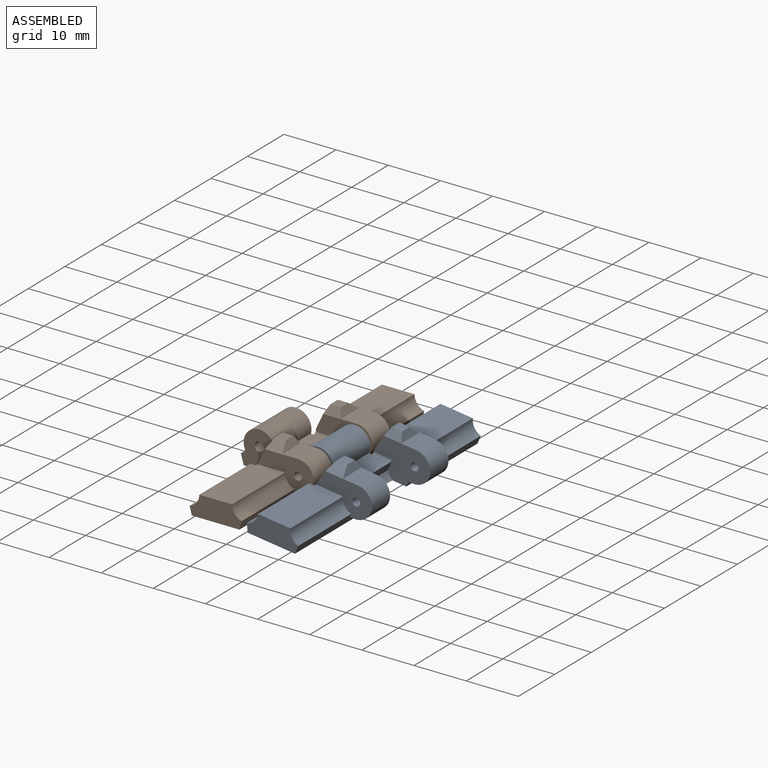
[diagram: assembled view]
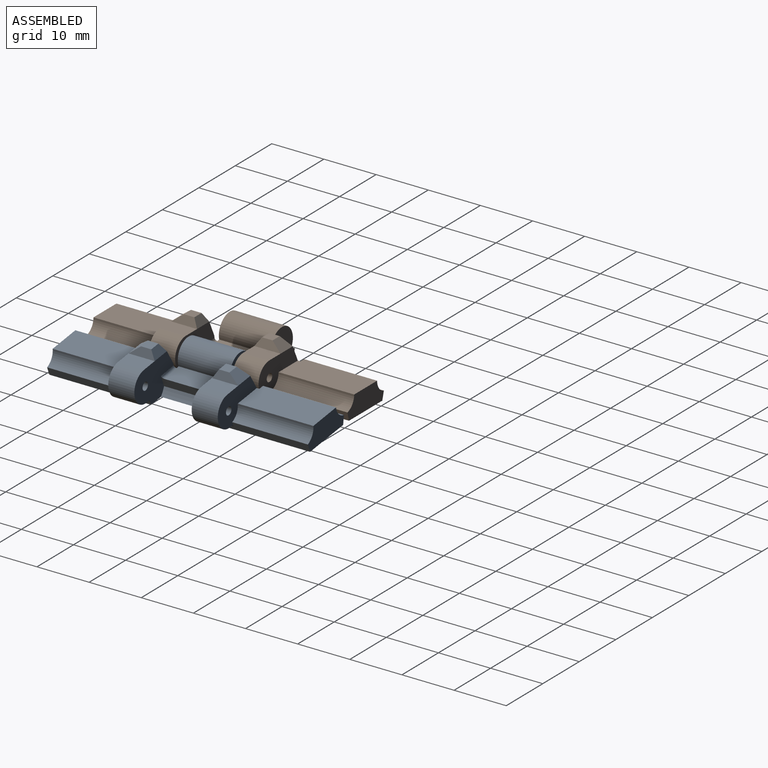
[diagram: assembled view, second angle]
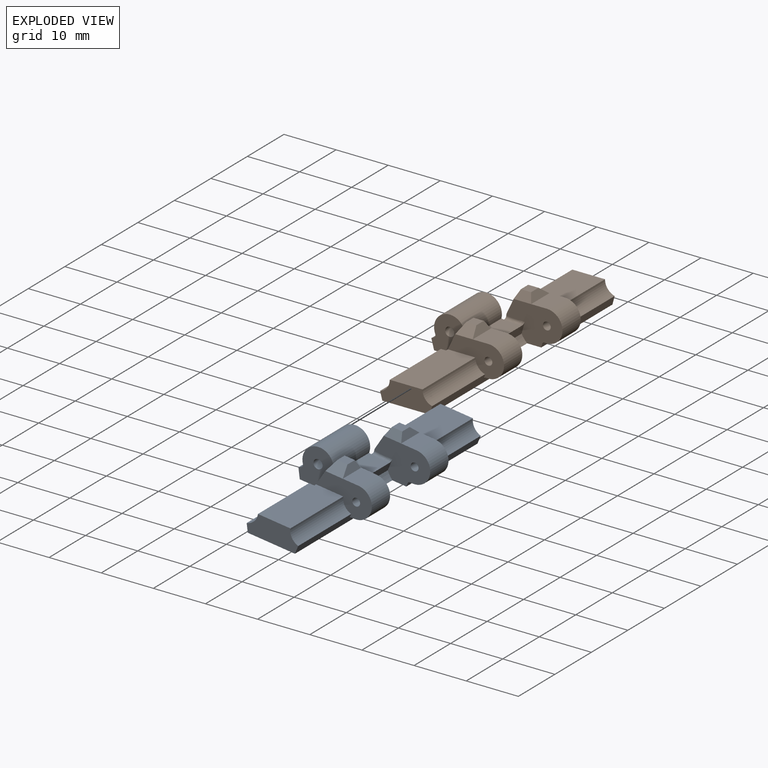
[diagram: exploded view]
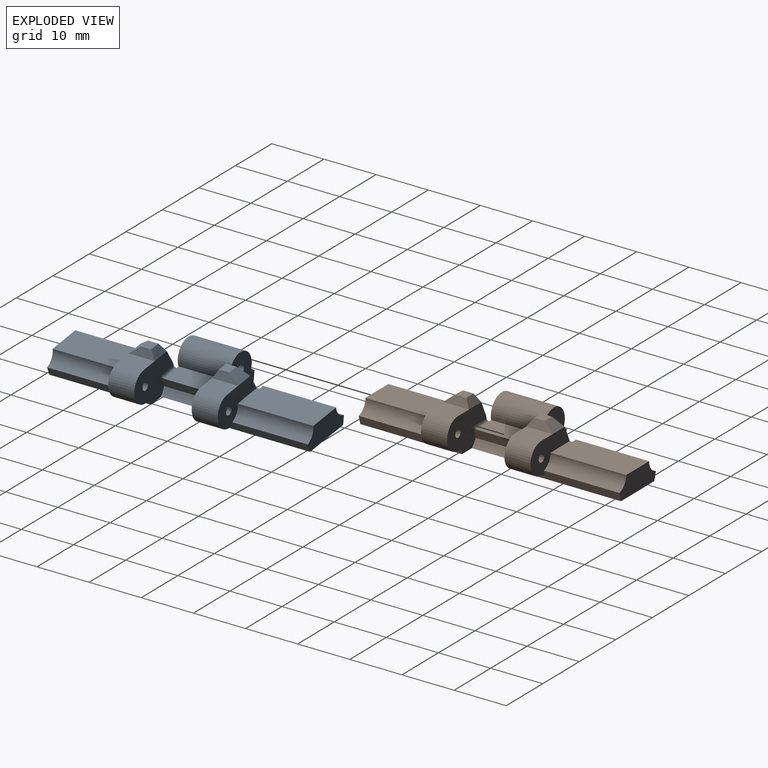
[diagram: exploded view, second angle]
ASSEMBLY  parts=2 mates=2
PART A: 51 faces, bbox 17.8x50x8.5 mm
  f0: plane 7x6.94mm, normal (0,-1,0), area 33.9mm2, adj f12,f16,f18,f21,f29,f30,f31,f47
  f1: plane 7x6.94mm, normal (0,1,0), area 33.9mm2, adj f2,f10,f12,f18,f29,f30,f31,f47
  f2: cylinder r=3.5mm len=6mm, axis (0,1,0), area 27.1mm2, adj f1,f7,f10,f11,f20,f38,f50
  f3: cylinder r=3mm len=6mm, axis (0,1,0), area 48.9mm2, adj f11,f17,f37,f46
  f4: plane 14.5x6.27mm, normal (0,0,1), area 90.4mm2, adj f8,f19,f21,f22,f25,f26
  f5: cylinder r=3mm len=6mm, axis (0,1,0), area 48.9mm2, adj f6,f19,f33,f45
  f6: plane 10.78x7mm, normal (0,1,0), area 51.8mm2, adj f5,f12,f14,f15,f21,f27,f32,f33
  f7: plane 14.5x6.27mm, normal (0,0,1), area 90.4mm2, adj f2,f9,f17,f20,f23,f24
  f8: plane 9.98x4mm, normal (0,-1,0), area 32.6mm2, adj f4,f12,f14,f16,f25,f26
  f9: plane 9.98x4mm, normal (0,1,0), area 32.6mm2, adj f7,f10,f12,f13,f23,f24
  f10: plane 20x1.59mm, normal (-0.97,0,-0.26), area 26.8mm2, adj f1,f2,f9,f12,f20,f23
  f11: plane 10.78x7mm, normal (0,-1,0), area 51.8mm2, adj f2,f3,f12,f13,f15,f28,f32,f37
  f12: plane 50x13.2mm, normal (0,0,-1), area 467.3mm2, adj f0,f1,f6,f8,f9,f10,f11,f13
  f13: plane 19.5x1.59mm, normal (0.97,0,-0.26), area 27.2mm2, adj f9,f11,f12,f17,f24,f46
  f14: plane 19.5x1.59mm, normal (0.97,0,-0.26), area 27.2mm2, adj f6,f8,f12,f19,f26,f45
  f15: plane 11x2.25mm, normal (0.97,0,-0.26), area 19.9mm2, adj f6,f11,f32,f48,f49,f50
  f16: plane 20x1.59mm, normal (-0.97,0,-0.26), area 26.8mm2, adj f0,f8,f12,f21,f22,f25
  f17: plane 10.77x6.35mm, normal (0,1,0), area 38.9mm2, adj f3,f7,f13,f24,f28,f37,f38,f42
  f18: cylinder r=3mm len=10mm, axis (0,1,0), area 113mm2, adj f0,f1,f47,f48
  f19: plane 10.77x6.35mm, normal (0,-1,0), area 38.9mm2, adj f4,f5,f14,f26,f27,f33,f34,f41
  f20: plane 3.38x2.85mm, normal (0,-1,0), area 3.9mm2, adj f2,f7,f10,f23
  f21: cylinder r=3.5mm len=6mm, axis (0,1,0), area 27.1mm2, adj f0,f4,f6,f16,f22,f34,f49
  f22: plane 3.38x2.85mm, normal (0,1,0), area 3.9mm2, adj f4,f16,f21,f25
  f23: cylinder r=2.5mm len=14mm, axis (0,1,0), area 45.8mm2, adj f7,f9,f10,f20
  f24: cylinder r=2.5mm len=14.5mm, axis (0,1,0), area 47.5mm2, adj f7,f9,f13,f17
  f25: cylinder r=2.5mm len=14mm, axis (0,1,0), area 45.8mm2, adj f4,f8,f16,f22
  f26: cylinder r=2.5mm len=14.5mm, axis (0,1,0), area 47.5mm2, adj f4,f8,f14,f19
  f27: cylinder r=0.75mm len=5mm, axis (0,1,0), area 23.6mm2, adj f6,f19
  f28: cylinder r=0.75mm len=5mm, axis (0,1,0), area 23.6mm2, adj f11,f17
  f29: cylinder r=0.88mm len=10mm, axis (0,1,0), area 55mm2, adj f0,f1
  f30: plane 10x0.53mm, normal (-0.5,0,0.87), area 6.1mm2, adj f0,f1,f31,f47
  f31: plane 10x1.96mm, normal (-0.97,0,-0.26), area 20.3mm2, adj f0,f1,f12,f30
  f32: cylinder r=5.5mm len=11mm, axis (0,-1,0), area 19.3mm2, adj f6,f11,f12,f15
  f33: plane 5x3.01mm, normal (0,0,1), area 15mm2, adj f5,f6,f19,f35
  f34: plane 5x4.5mm, normal (-0.91,0,0.42), area 22.3mm2, adj f6,f19,f21,f36,f41,f44
  f35: plane 5x1.5mm, normal (0.91,0,0.42), area 5.8mm2, adj f33,f36,f41,f44
  f36: plane 2x1.96mm, normal (0,0,1), area 3.9mm2, adj f34,f35,f41,f44
  f37: plane 5x3.01mm, normal (0,0,1), area 15mm2, adj f3,f11,f17,f40
  f38: plane 5x4.5mm, normal (-0.91,0,0.42), area 22.3mm2, adj f2,f11,f17,f39,f42,f43
  f39: plane 2x1.96mm, normal (0,0,1), area 3.9mm2, adj f38,f40,f42,f43
  f40: plane 5x1.5mm, normal (0.91,0,0.42), area 5.8mm2, adj f37,f39,f42,f43
  f41: plane 3.36x2mm, normal (0,-0.6,0.8), area 6.7mm2, adj f19,f34,f35,f36
  f42: plane 3.36x2mm, normal (0,0.6,0.8), area 6.7mm2, adj f17,f38,f39,f40
  f43: plane 3.36x1.5mm, normal (0,-0.83,0.55), area 4.8mm2, adj f11,f38,f39,f40
  f44: plane 3.36x1.5mm, normal (0,0.83,0.55), area 4.8mm2, adj f6,f34,f35,f36
  f45: cylinder r=0.5mm len=5mm, axis (0,1,0), area 3.6mm2, adj f5,f6,f14,f19
  f46: cylinder r=0.5mm len=5mm, axis (0,1,0), area 3.6mm2, adj f3,f11,f13,f17
  f47: cylinder r=0.5mm len=10mm, axis (0,1,0), area 7.1mm2, adj f0,f1,f18,f30
  f48: cylinder r=20.1mm len=10mm, axis (0,1,0), area 39.9mm2, adj f0,f1,f15,f18,f49,f50
  f49: torus R=19.6mm, axis (0,-1,0), area 2.8mm2, adj f6,f15,f21,f48
  f50: torus R=19.6mm, axis (0,1,0), area 2.8mm2, adj f2,f11,f15,f48
PART B: same geometry as A
PLACE A rot(axis=(0,1,0),7.7deg) t=(-9.54,6.74,-7.87)mm
PLACE B t=(-20.74,6.74,-14.86)mm fixed
MATE cylindrical A.f2 <-> B.f3  axis (0,1,0) through (42.36,6.74,-10.86)mm
MATE planar A.f2 <-> B.f2  axis (0,1,0) through (42.36,6.74,-10.86)mm
